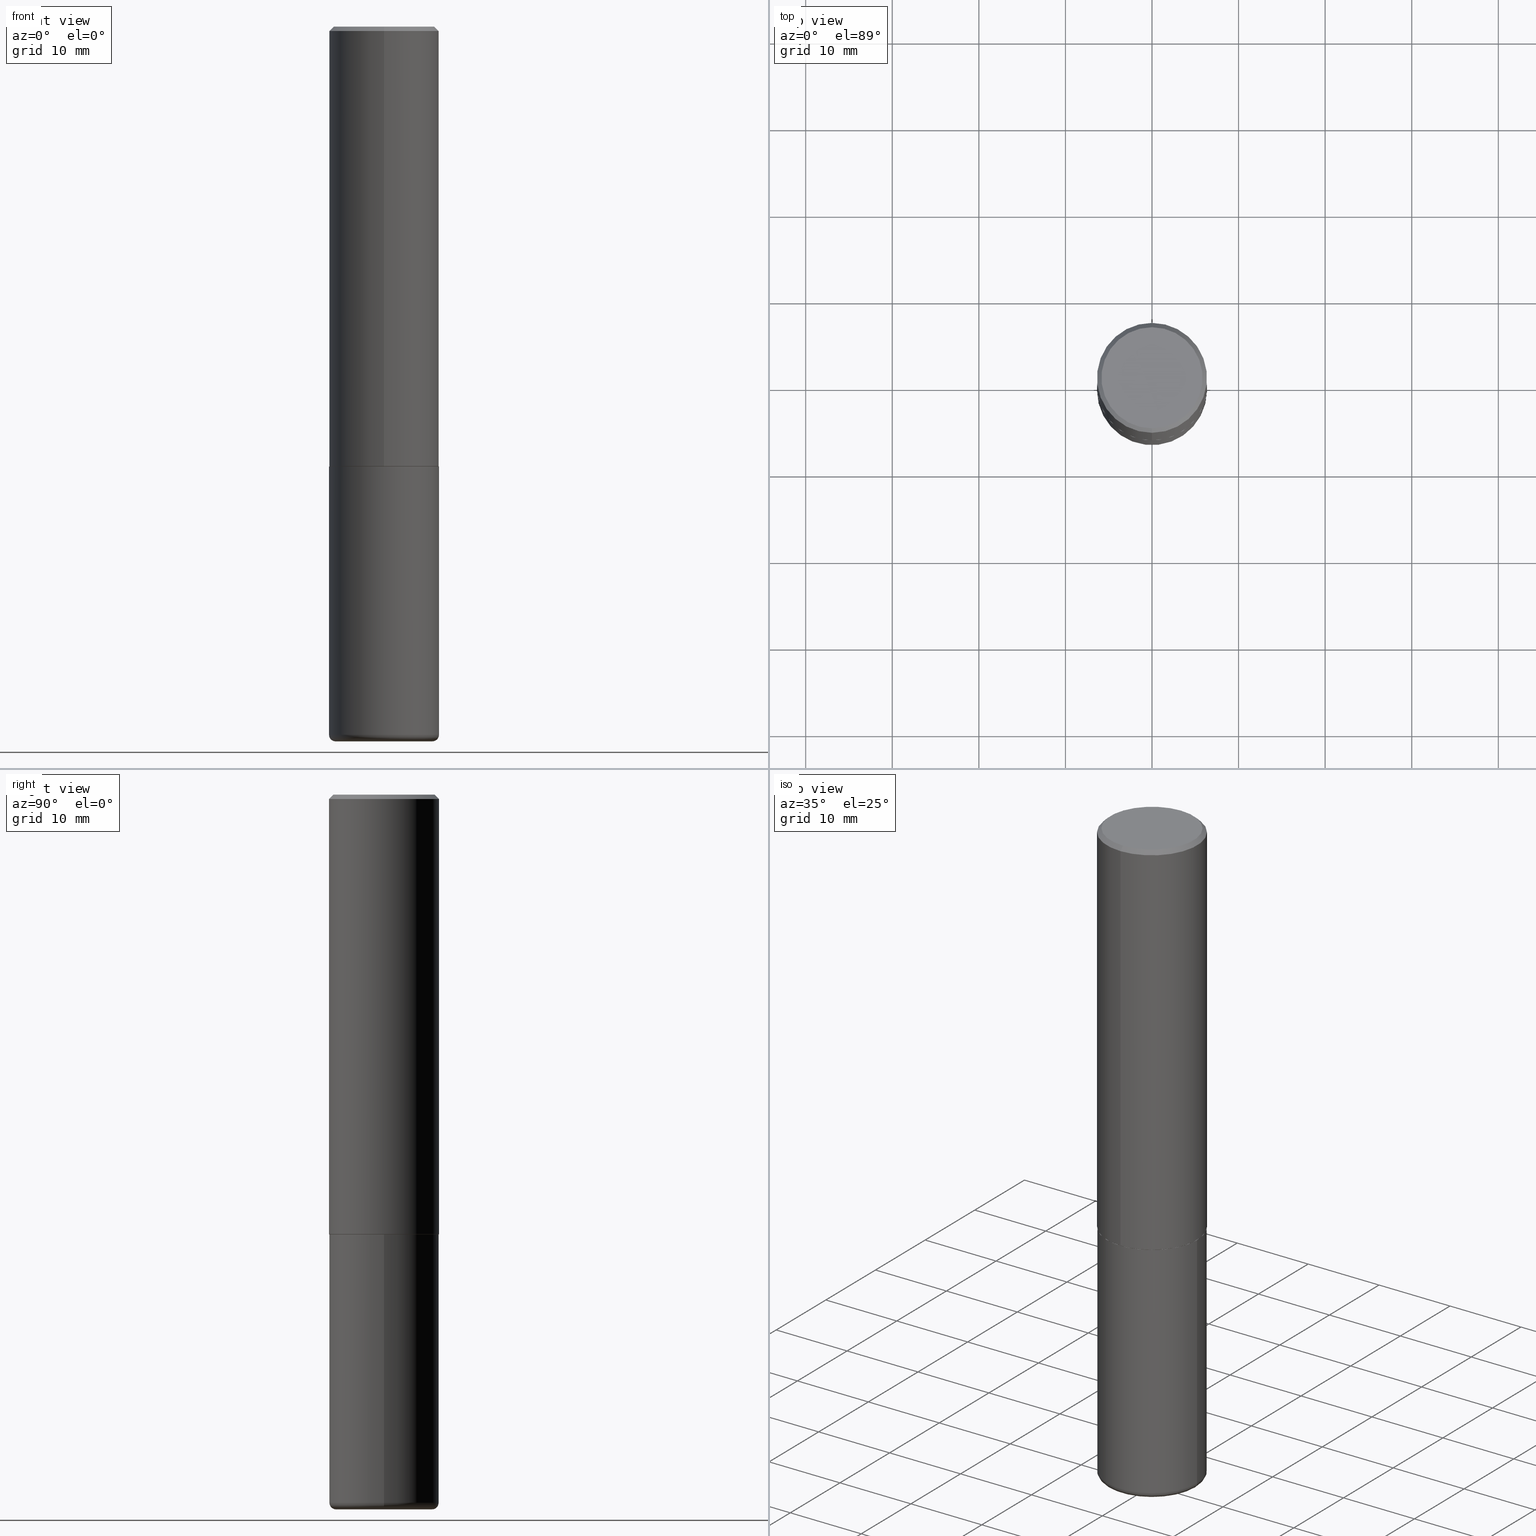
[diagram: canonical four-view strip — front | top / right | iso, engineering-drawing reading convention]
A machine part, canonical four-view strip (front | top / right | iso — engineering-drawing reading convention). The complete STEP part file that produces these views, byte-faithful:
ISO-10303-21;
HEADER;
FILE_DESCRIPTION (( 'STEP AP203' ),
    '1' );
FILE_NAME ('37192.STEP',
    '2024-03-01T21:39:27',
    ( '' ),
    ( '' ),
    'SwSTEP 2.0',
    'SolidWorks 2023',
    '' );
FILE_SCHEMA (( 'CONFIG_CONTROL_DESIGN' ));
ENDSEC;

DATA;
#1 = EDGE_LOOP ( 'NONE', ( #74, #173, #35, #307 ) ) ;
#2 = DIRECTION ( 'NONE',  ( 6.982962677686265922E-15, 1.000000000000000000, -3.500180241882337261E-15 ) ) ;
#3 = ORIENTED_EDGE ( 'NONE', *, *, #322, .F. ) ;
#4 = VERTEX_POINT ( 'NONE', #361 ) ;
#5 = VECTOR ( 'NONE', #354, 39.37007874015748143 ) ;
#6 = ORIENTED_EDGE ( 'NONE', *, *, #44, .F. ) ;
#7 = EDGE_CURVE ( 'NONE', #239, #100, #306, .T. ) ;
#8 = CARTESIAN_POINT ( 'NONE',  ( 4.889829077511369061E-31, -6.984550162698166284E-17, -0.02000000000000005593 ) ) ;
#9 = DIRECTION ( 'NONE',  ( -6.982962677686265133E-15, -1.000000000000000000, 3.291383124896702687E-15 ) ) ;
#10 = AXIS2_PLACEMENT_3D ( 'NONE', #364, #241, #367 ) ;
#11 = AXIS2_PLACEMENT_3D ( 'NONE', #292, #58, #266 ) ;
#12 = PLANE ( 'NONE',  #244 ) ;
#13 = ORIENTED_EDGE ( 'NONE', *, *, #102, .F. ) ;
#14 = DIRECTION ( 'NONE',  ( -6.982962677686265922E-15, -1.000000000000000000, 3.500180241882337261E-15 ) ) ;
#15 = VERTEX_POINT ( 'NONE', #246 ) ;
#16 = PRODUCT_DEFINITION_FORMATION_WITH_SPECIFIED_SOURCE ( 'ANY', '', #46, .NOT_KNOWN. ) ;
#17 = ORIENTED_EDGE ( 'NONE', *, *, #373, .F. ) ;
#18 = AXIS2_PLACEMENT_3D ( 'NONE', #411, #190, #347 ) ;
#19 = CARTESIAN_POINT ( 'NONE',  ( -1.738757706743831162E-15, -0.2490000000000069935, -1.999999999999999112 ) ) ;
#20 = ORIENTED_EDGE ( 'NONE', *, *, #399, .F. ) ;
#21 = DIRECTION ( 'NONE',  ( 1.000000000000000000, -6.982962677686266711E-15, 4.876176775795935793E-29 ) ) ;
#22 = CARTESIAN_POINT ( 'NONE',  ( 7.874409555916140425E-29, -1.124256991107492948E-14, -3.220000000000000195 ) ) ;
#23 = AXIS2_PLACEMENT_3D ( 'NONE', #330, #120, #147 ) ;
#24 = CARTESIAN_POINT ( 'NONE',  ( 1.772804125721499264E-15, 0.2489999999999930047, -2.000000000000000888 ) ) ;
#25 = APPROVAL_DATE_TIME ( #334, #176 ) ;
#26 = AXIS2_PLACEMENT_3D ( 'NONE', #47, #54, #90 ) ;
#27 = DIRECTION ( 'NONE',  ( 5.024295867788490741E-15, 0.7071067811866103003, 0.7071067811864847341 ) ) ;
#28 = EDGE_CURVE ( 'NONE', #100, #87, #219, .T. ) ;
#29 = ORIENTED_EDGE ( 'NONE', *, *, #327, .T. ) ;
#30 = DIRECTION ( 'NONE',  ( -6.982962677686266711E-15, -1.000000000000000000, 3.492275081349073750E-15 ) ) ;
#31 = CONICAL_SURFACE ( 'NONE', #122, 0.2489999999999999991, 0.7853981633975336552 ) ;
#32 =( CONVERSION_BASED_UNIT ( 'INCH', #309 ) LENGTH_UNIT ( ) NAMED_UNIT ( #385 ) );
#33 = ORIENTED_EDGE ( 'NONE', *, *, #102, .T. ) ;
#34 = ADVANCED_FACE ( 'NONE', ( #124 ), #178, .T. ) ;
#35 = ORIENTED_EDGE ( 'NONE', *, *, #399, .T. ) ;
#36 = AXIS2_PLACEMENT_3D ( 'NONE', #302, #134, #170 ) ;
#37 = DIRECTION ( 'NONE',  ( 2.444914538755677752E-29, -3.492275081349073750E-15, -1.000000000000000000 ) ) ;
#38 = EDGE_CURVE ( 'NONE', #199, #267, #94, .T. ) ;
#39 = CARTESIAN_POINT ( 'NONE',  ( 4.890937612370273194E-29, -6.982962677686291165E-15, -2.000000000000000000 ) ) ;
#40 = ORIENTED_EDGE ( 'NONE', *, *, #211, .T. ) ;
#41 = EDGE_CURVE ( 'NONE', #4, #387, #343, .T. ) ;
#42 = VECTOR ( 'NONE', #214, 39.37007874015748143 ) ;
#43 = CC_DESIGN_SECURITY_CLASSIFICATION ( #324, ( #16 ) ) ;
#44 = EDGE_CURVE ( 'NONE', #87, #355, #48, .T. ) ;
#45 = VERTEX_POINT ( 'NONE', #395 ) ;
#46 = PRODUCT ( '37192', '37192', '', ( #168 ) ) ;
#47 = CARTESIAN_POINT ( 'NONE',  ( 4.889829077511355503E-29, -6.984550162698146711E-15, -2.000000000000000000 ) ) ;
#48 = LINE ( 'NONE', #179, #42 ) ;
#49 = CARTESIAN_POINT ( 'NONE',  ( 0.000000000000000000, 0.000000000000000000, 0.000000000000000000 ) ) ;
#50 = CONICAL_SURFACE ( 'NONE', #260, 0.2500000000000000000, 0.7853981633974468357 ) ;
#51 = CARTESIAN_POINT ( 'NONE',  ( -2.404777551521915738E-45, 3.434944079330397096E-31, 9.835834804867292393E-17 ) ) ;
#52 = PERSON_AND_ORGANIZATION ( #375, #248 ) ;
#53 = FACE_OUTER_BOUND ( 'NONE', #182, .T. ) ;
#54 = DIRECTION ( 'NONE',  ( -2.444914538755677752E-29, 3.492275081349073750E-15, 1.000000000000000000 ) ) ;
#55 = CARTESIAN_POINT ( 'NONE',  ( 0.000000000000000000, 0.000000000000000000, 0.000000000000000000 ) ) ;
#56 = ADVANCED_FACE ( 'NONE', ( #320 ), #12, .F. ) ;
#57 = PERSON_AND_ORGANIZATION ( #375, #248 ) ;
#58 = DIRECTION ( 'NONE',  ( -2.445468806185136597E-29, 3.491481338843145583E-15, 1.000000000000000000 ) ) ;
#59 = CIRCLE ( 'NONE', #11, 0.2200000000000000011 ) ;
#60 = EDGE_CURVE ( 'NONE', #280, #15, #220, .T. ) ;
#61 = CARTESIAN_POINT ( 'NONE',  ( 1.776356839400276103E-15, 0.2499999999999933109, -1.999000000000000776 ) ) ;
#62 = PLANE ( 'NONE',  #36 ) ;
#63 = LOCAL_TIME ( 16, 39, 27.00000000000000000, #163 ) ;
#64 = EDGE_LOOP ( 'NONE', ( #357, #141, #13, #184 ) ) ;
#65 = ORIENTED_EDGE ( 'NONE', *, *, #69, .T. ) ;
#66 = CYLINDRICAL_SURFACE ( 'NONE', #195, 0.2500000000000001110 ) ;
#67 = ORIENTED_EDGE ( 'NONE', *, *, #150, .F. ) ;
#68 = AXIS2_PLACEMENT_3D ( 'NONE', #217, #79, #274 ) ;
#69 = EDGE_CURVE ( 'NONE', #114, #199, #325, .T. ) ;
#70 = DIRECTION ( 'NONE',  ( -2.444914538755677752E-29, 3.492275081349073750E-15, 1.000000000000000000 ) ) ;
#71 = CARTESIAN_POINT ( 'NONE',  ( 4.889829077511355503E-29, -6.984550162698146711E-15, -2.000000000000000000 ) ) ;
#72 = VECTOR ( 'NONE', #403, 39.37007874015748143 ) ;
#73 = EDGE_LOOP ( 'NONE', ( #125, #370, #97, #142 ) ) ;
#74 = ORIENTED_EDGE ( 'NONE', *, *, #7, .F. ) ;
#75 = DIRECTION ( 'NONE',  ( -2.445468806185136597E-29, 3.491481338843145583E-15, 1.000000000000000000 ) ) ;
#76 = ORIENTED_EDGE ( 'NONE', *, *, #242, .T. ) ;
#77 = APPROVAL_ROLE ( '' ) ;
#78 = CC_DESIGN_PERSON_AND_ORGANIZATION_ASSIGNMENT ( #261, #300, ( #16 ) ) ;
#79 = DIRECTION ( 'NONE',  ( -2.445468806185136597E-29, 3.491481338843145583E-15, 1.000000000000000000 ) ) ;
#80 = APPROVAL_DATE_TIME ( #262, #209 ) ;
#81 = CARTESIAN_POINT ( 'NONE',  ( 0.000000000000000000, 0.000000000000000000, 0.000000000000000000 ) ) ;
#82 = FACE_OUTER_BOUND ( 'NONE', #181, .T. ) ;
#83 = CARTESIAN_POINT ( 'NONE',  ( -0.2200000000000000011, -9.625166702121341610E-15, -3.249999999999999556 ) ) ;
#84 = FACE_OUTER_BOUND ( 'NONE', #271, .T. ) ;
#85 = AXIS2_PLACEMENT_3D ( 'NONE', #305, #270, #265 ) ;
#86 = AXIS2_PLACEMENT_3D ( 'NONE', #49, #407, #104 ) ;
#87 = VERTEX_POINT ( 'NONE', #250 ) ;
#88 = CARTESIAN_POINT ( 'NONE',  ( 1.745740669421566875E-15, 0.2499999999999999167, -0.02000000000000093023 ) ) ;
#89 = DESIGN_CONTEXT ( 'detailed design', #245, 'design' ) ;
#90 = DIRECTION ( 'NONE',  ( -6.982962677686265133E-15, -1.000000000000000000, 3.291383124896702687E-15 ) ) ;
#91 = DIRECTION ( 'NONE',  ( -2.445468806185136597E-29, 3.491481338843145583E-15, 1.000000000000000000 ) ) ;
#92 = EDGE_LOOP ( 'NONE', ( #188, #384, #159, #288 ) ) ;
#93 = CC_DESIGN_PERSON_AND_ORGANIZATION_ASSIGNMENT ( #376, #112, ( #324 ) ) ;
#94 = LINE ( 'NONE', #251, #72 ) ;
#95 = CIRCLE ( 'NONE', #372, 0.2200000000000000011 ) ;
#96 = CC_DESIGN_APPROVAL ( #340, ( #16 ) ) ;
#97 = ORIENTED_EDGE ( 'NONE', *, *, #44, .T. ) ;
#98 = CIRCLE ( 'NONE', #291, 0.2500000000000000000 ) ;
#99 = DIRECTION ( 'NONE',  ( -6.982962677686265922E-15, -1.000000000000000000, 3.492275081349073750E-15 ) ) ;
#100 = VERTEX_POINT ( 'NONE', #218 ) ;
#101 = DIRECTION ( 'NONE',  ( -2.444914538755677752E-29, 3.492275081349073750E-15, 1.000000000000000000 ) ) ;
#102 = EDGE_CURVE ( 'NONE', #267, #146, #151, .T. ) ;
#103 = ADVANCED_BREP_SHAPE_REPRESENTATION ( '37192', ( #312, #290, #86 ), #153 ) ;
#104 = DIRECTION ( 'NONE',  ( 1.000000000000000000, 0.000000000000000000, 0.000000000000000000 ) ) ;
#105 = DIRECTION ( 'NONE',  ( 1.000000000000000000, -6.982962677686266711E-15, 0.000000000000000000 ) ) ;
#106 = CIRCLE ( 'NONE', #382, 0.2500000000000002220 ) ;
#107 = CYLINDRICAL_SURFACE ( 'NONE', #284, 0.2500000000000000000 ) ;
#108 = CC_DESIGN_PERSON_AND_ORGANIZATION_ASSIGNMENT ( #52, #189, ( #249 ) ) ;
#109 = DIRECTION ( 'NONE',  ( 1.000000000000000000, -6.982962677686266711E-15, 4.876176775795935793E-29 ) ) ;
#110 = LINE ( 'NONE', #88, #316 ) ;
#111 = DIRECTION ( 'NONE',  ( -2.444914538755677752E-29, 3.492275081349073750E-15, 1.000000000000000000 ) ) ;
#112 = PERSON_AND_ORGANIZATION_ROLE ( 'classification_officer' ) ;
#113 = CARTESIAN_POINT ( 'NONE',  ( 0.2500000000000000000, -8.728703347107857054E-15, -2.000000000000000000 ) ) ;
#114 = VERTEX_POINT ( 'NONE', #24 ) ;
#115 = EDGE_CURVE ( 'NONE', #239, #45, #59, .T. ) ;
#116 = ORIENTED_EDGE ( 'NONE', *, *, #373, .T. ) ;
#117 = FACE_OUTER_BOUND ( 'NONE', #230, .T. ) ;
#118 = ORIENTED_EDGE ( 'NONE', *, *, #121, .T. ) ;
#119 = CARTESIAN_POINT ( 'NONE',  ( 4.889829077511369061E-31, -6.984550162698166284E-17, -0.02000000000000005593 ) ) ;
#120 = DIRECTION ( 'NONE',  ( -2.445468806185136597E-29, 3.491481338843145583E-15, 1.000000000000000000 ) ) ;
#121 = EDGE_CURVE ( 'NONE', #387, #4, #207, .T. ) ;
#122 = AXIS2_PLACEMENT_3D ( 'NONE', #71, #282, #9 ) ;
#123 = CARTESIAN_POINT ( 'NONE',  ( 4.889829077511355503E-29, -6.984550162698146711E-15, -2.000000000000000000 ) ) ;
#124 = FACE_OUTER_BOUND ( 'NONE', #401, .T. ) ;
#125 = ORIENTED_EDGE ( 'NONE', *, *, #293, .F. ) ;
#126 = DIRECTION ( 'NONE',  ( -6.982962677686265922E-15, -1.000000000000000000, 3.492275081349073750E-15 ) ) ;
#127 = CC_DESIGN_PERSON_AND_ORGANIZATION_ASSIGNMENT ( #338, #268, ( #46 ) ) ;
#128 = CARTESIAN_POINT ( 'NONE',  ( 1.358398051899500366E-28, -3.275945279050349102E-15, -3.249999999999999556 ) ) ;
#129 = CARTESIAN_POINT ( 'NONE',  ( 0.000000000000000000, 0.000000000000000000, 0.000000000000000000 ) ) ;
#130 = DATE_AND_TIME ( #297, #63 ) ;
#131 = VECTOR ( 'NONE', #27, 39.37007874015748143 ) ;
#132 = FACE_OUTER_BOUND ( 'NONE', #317, .T. ) ;
#133 = SECURITY_CLASSIFICATION_LEVEL ( 'unclassified' ) ;
#134 = DIRECTION ( 'NONE',  ( -2.444914538755677191E-29, 3.492275081349073750E-15, 1.000000000000000000 ) ) ;
#135 = FACE_OUTER_BOUND ( 'NONE', #1, .T. ) ;
#136 = ADVANCED_FACE ( 'NONE', ( #84 ), #227, .F. ) ;
#137 = PERSON_AND_ORGANIZATION ( #375, #248 ) ;
#138 = CARTESIAN_POINT ( 'NONE',  ( 0.000000000000000000, 0.000000000000000000, 0.000000000000000000 ) ) ;
#139 = ORIENTED_EDGE ( 'NONE', *, *, #311, .F. ) ;
#140 = CC_DESIGN_PERSON_AND_ORGANIZATION_ASSIGNMENT ( #412, #197, ( #16 ) ) ;
#141 = ORIENTED_EDGE ( 'NONE', *, *, #273, .T. ) ;
#142 = ORIENTED_EDGE ( 'NONE', *, *, #211, .F. ) ;
#143 = ORIENTED_EDGE ( 'NONE', *, *, #60, .F. ) ;
#144 = ORIENTED_EDGE ( 'NONE', *, *, #150, .T. ) ;
#145 = CONICAL_SURFACE ( 'NONE', #402, 0.2500000000000000000, 0.7853981633974468357 ) ;
#146 = VERTEX_POINT ( 'NONE', #61 ) ;
#147 = DIRECTION ( 'NONE',  ( 1.000000000000000000, -6.982962677686263555E-15, 4.883557194083112340E-29 ) ) ;
#148 = LOCAL_TIME ( 16, 39, 27.00000000000000000, #232 ) ;
#149 = DIRECTION ( 'NONE',  ( -6.982962677686265133E-15, -1.000000000000000000, 3.291383124896702687E-15 ) ) ;
#150 = EDGE_CURVE ( 'NONE', #146, #280, #408, .T. ) ;
#151 = CIRCLE ( 'NONE', #18, 0.2500000000000002220 ) ;
#152 = EDGE_LOOP ( 'NONE', ( #67, #204, #351, #143 ) ) ;
#153 =( GEOMETRIC_REPRESENTATION_CONTEXT ( 3 ) GLOBAL_UNCERTAINTY_ASSIGNED_CONTEXT ( ( #193 ) ) GLOBAL_UNIT_ASSIGNED_CONTEXT ( ( #32, #377, #352 ) ) REPRESENTATION_CONTEXT ( 'NONE', 'WORKASPACE' ) );
#154 = DIRECTION ( 'NONE',  ( -6.982962677686265133E-15, -1.000000000000000000, 3.291383124896702687E-15 ) ) ;
#155 = ORIENTED_EDGE ( 'NONE', *, *, #7, .T. ) ;
#156 = CC_DESIGN_APPROVAL ( #209, ( #249 ) ) ;
#157 = CC_DESIGN_DATE_AND_TIME_ASSIGNMENT ( #130, #413, ( #249 ) ) ;
#158 = PRODUCT_DEFINITION_SHAPE ( 'NONE', 'NONE',  #249 ) ;
#159 = ORIENTED_EDGE ( 'NONE', *, *, #410, .T. ) ;
#160 = APPLICATION_PROTOCOL_DEFINITION ( 'international standard', 'config_control_design', 1994, #245 ) ;
#161 = DIRECTION ( 'NONE',  ( -2.445468806185136597E-29, 3.491481338843145583E-15, 1.000000000000000000 ) ) ;
#162 = CARTESIAN_POINT ( 'NONE',  ( 4.887384162972599193E-29, -6.981057887616797828E-15, -1.998999999999999888 ) ) ;
#163 = COORDINATED_UNIVERSAL_TIME_OFFSET ( 5, 0, .BEHIND. ) ;
#164 = DIRECTION ( 'NONE',  ( 2.444914538755677191E-29, -3.492275081349073750E-15, -1.000000000000000000 ) ) ;
#165 = VECTOR ( 'NONE', #416, 39.37007874015748143 ) ;
#166 = DIRECTION ( 'NONE',  ( -2.445468806185136597E-29, 3.491481338843145583E-15, 1.000000000000000000 ) ) ;
#167 = DIRECTION ( 'NONE',  ( -6.982962677686266711E-15, -1.000000000000000000, 3.492275081349073750E-15 ) ) ;
#168 = MECHANICAL_CONTEXT ( 'NONE', #289, 'mechanical' ) ;
#169 = LINE ( 'NONE', #303, #165 ) ;
#170 = DIRECTION ( 'NONE',  ( -6.982962677686265922E-15, -1.000000000000000000, 3.492275081349073750E-15 ) ) ;
#171 = ORIENTED_EDGE ( 'NONE', *, *, #38, .T. ) ;
#172 = CLOSED_SHELL ( 'NONE', ( #226, #34, #56, #206, #279, #236 ) ) ;
#173 = ORIENTED_EDGE ( 'NONE', *, *, #115, .T. ) ;
#174 = CARTESIAN_POINT ( 'NONE',  ( 4.889829077511369061E-31, -6.984550162698166284E-17, -0.02000000000000005593 ) ) ;
#175 = AXIS2_PLACEMENT_3D ( 'NONE', #119, #398, #222 ) ;
#176 = APPROVAL ( #275, 'UNSPECIFIED' ) ;
#177 = CARTESIAN_POINT ( 'NONE',  ( -2.404777551521915738E-45, 3.434944079330397096E-31, 9.835834804867292393E-17 ) ) ;
#178 = TOROIDAL_SURFACE ( 'NONE', #23, 0.2200000000000000011, 0.02999999999999967970 ) ;
#179 = CARTESIAN_POINT ( 'NONE',  ( 0.2500000000000000000, -1.745740669421566678E-15, 1.219044193948983948E-29 ) ) ;
#180 = CONICAL_SURFACE ( 'NONE', #26, 0.2489999999999999991, 0.7853981633975336552 ) ;
#181 = EDGE_LOOP ( 'NONE', ( #3, #331 ) ) ;
#182 = EDGE_LOOP ( 'NONE', ( #328, #201, #256, #254 ) ) ;
#183 = DIRECTION ( 'NONE',  ( -6.982962677686266711E-15, -1.000000000000000000, 3.278217592397113101E-15 ) ) ;
#184 = ORIENTED_EDGE ( 'NONE', *, *, #38, .F. ) ;
#185 = COORDINATED_UNIVERSAL_TIME_OFFSET ( 5, 0, .BEHIND. ) ;
#186 = EDGE_CURVE ( 'NONE', #267, #15, #169, .T. ) ;
#187 = CARTESIAN_POINT ( 'NONE',  ( 1.769251412042698169E-15, 0.2489999999999930047, -2.000000000000000888 ) ) ;
#188 = ORIENTED_EDGE ( 'NONE', *, *, #390, .F. ) ;
#189 = PERSON_AND_ORGANIZATION_ROLE ( 'creator' ) ;
#190 = DIRECTION ( 'NONE',  ( -2.444914538755677752E-29, 3.492275081349073750E-15, 1.000000000000000000 ) ) ;
#191 = PERSON_AND_ORGANIZATION ( #375, #248 ) ;
#192 = DIRECTION ( 'NONE',  ( -2.444914538755678032E-29, 3.492275081349073750E-15, 1.000000000000000000 ) ) ;
#193 = UNCERTAINTY_MEASURE_WITH_UNIT (LENGTH_MEASURE( 1.000000000000000082E-05 ), #32, 'distance_accuracy_value', 'NONE');
#194 = DATE_AND_TIME ( #388, #329 ) ;
#195 = AXIS2_PLACEMENT_3D ( 'NONE', #138, #415, #30 ) ;
#196 = LOCAL_TIME ( 16, 39, 27.00000000000000000, #252 ) ;
#197 = PERSON_AND_ORGANIZATION_ROLE ( 'creator' ) ;
#198 = CARTESIAN_POINT ( 'NONE',  ( 7.947773620101692818E-29, -1.134731435124022127E-14, -3.249999999999999556 ) ) ;
#199 = VERTEX_POINT ( 'NONE', #19 ) ;
#200 = DIRECTION ( 'NONE',  ( 4.937700262164540154E-15, 0.7071067811865440200, -0.7071067811865510144 ) ) ;
#201 = ORIENTED_EDGE ( 'NONE', *, *, #390, .T. ) ;
#202 = AXIS2_PLACEMENT_3D ( 'NONE', #22, #91, #240 ) ;
#203 = AXIS2_PLACEMENT_3D ( 'NONE', #128, #259, #380 ) ;
#204 = ORIENTED_EDGE ( 'NONE', *, *, #233, .T. ) ;
#205 = ORIENTED_EDGE ( 'NONE', *, *, #186, .F. ) ;
#206 = ADVANCED_FACE ( 'NONE', ( #374 ), #107, .T. ) ;
#207 = CIRCLE ( 'NONE', #365, 0.2299999999999998990 ) ;
#208 = ADVANCED_FACE ( 'NONE', ( #132 ), #255, .T. ) ;
#209 = APPROVAL ( #216, 'UNSPECIFIED' ) ;
#210 = DIRECTION ( 'NONE',  ( -2.444914538755677752E-29, 3.492275081349073750E-15, 1.000000000000000000 ) ) ;
#211 = EDGE_CURVE ( 'NONE', #363, #355, #98, .T. ) ;
#212 = CARTESIAN_POINT ( 'NONE',  ( 7.874409555916140425E-29, -1.124256991107492948E-14, -3.220000000000000195 ) ) ;
#213 = VECTOR ( 'NONE', #192, 39.37007874015748143 ) ;
#214 = DIRECTION ( 'NONE',  ( -2.445468806185136877E-29, 3.491481338843145188E-15, 1.000000000000000000 ) ) ;
#215 = DIRECTION ( 'NONE',  ( 1.000000000000000000, -6.982962677686266711E-15, 0.000000000000000000 ) ) ;
#216 = APPROVAL_STATUS ( 'not_yet_approved' ) ;
#217 = CARTESIAN_POINT ( 'NONE',  ( 7.874409555916140425E-29, -1.124256991107492948E-14, -3.220000000000000195 ) ) ;
#218 = CARTESIAN_POINT ( 'NONE',  ( -0.2499999999999998335, -9.466213071674680591E-15, -3.220000000000000195 ) ) ;
#219 = CIRCLE ( 'NONE', #235, 0.2499999999999999722 ) ;
#220 = CIRCLE ( 'NONE', #396, 0.2500000000000000000 ) ;
#221 = DIRECTION ( 'NONE',  ( 6.982962677686265922E-15, 1.000000000000000000, -3.492275081349073750E-15 ) ) ;
#222 = DIRECTION ( 'NONE',  ( -6.982962677686265922E-15, -1.000000000000000000, 3.500180241882337261E-15 ) ) ;
#223 = APPROVAL_PERSON_ORGANIZATION ( #57, #209, #77 ) ;
#224 = LINE ( 'NONE', #389, #5 ) ;
#225 = FACE_OUTER_BOUND ( 'NONE', #247, .T. ) ;
#226 = ADVANCED_FACE ( 'NONE', ( #369 ), #263, .T. ) ;
#227 = PLANE ( 'NONE',  #353 ) ;
#228 = CIRCLE ( 'NONE', #175, 0.2500000000000000000 ) ;
#229 = FACE_OUTER_BOUND ( 'NONE', #92, .T. ) ;
#230 = EDGE_LOOP ( 'NONE', ( #276, #65, #171, #238 ) ) ;
#231 = CARTESIAN_POINT ( 'NONE',  ( 4.889829077511369061E-31, -6.984550162698166284E-17, -0.02000000000000005593 ) ) ;
#232 = COORDINATED_UNIVERSAL_TIME_OFFSET ( 5, 0, .BEHIND. ) ;
#233 = EDGE_CURVE ( 'NONE', #146, #267, #106, .T. ) ;
#234 = CARTESIAN_POINT ( 'NONE',  ( -0.2500000000000000000, -7.336409454980359463E-15, -2.000000000000000000 ) ) ;
#235 = AXIS2_PLACEMENT_3D ( 'NONE', #212, #321, #283 ) ;
#236 = ADVANCED_FACE ( 'NONE', ( #225 ), #333, .T. ) ;
#237 = CIRCLE ( 'NONE', #299, 0.2489999999999999991 ) ;
#238 = ORIENTED_EDGE ( 'NONE', *, *, #233, .F. ) ;
#239 = VERTEX_POINT ( 'NONE', #83 ) ;
#240 = DIRECTION ( 'NONE',  ( 1.000000000000000000, -6.982962677686263555E-15, 4.883557194083112340E-29 ) ) ;
#241 = DIRECTION ( 'NONE',  ( 7.105427357601001859E-15, 1.000000000000000000, -3.491481338843145583E-15 ) ) ;
#242 = EDGE_CURVE ( 'NONE', #355, #363, #344, .T. ) ;
#243 = DIRECTION ( 'NONE',  ( -1.000000000000000000, 6.982962677686265922E-15, -4.876176775795935793E-29 ) ) ;
#244 = AXIS2_PLACEMENT_3D ( 'NONE', #39, #281, #243 ) ;
#245 = APPLICATION_CONTEXT ( 'configuration controlled 3d designs of mechanical parts and assemblies' ) ;
#246 = CARTESIAN_POINT ( 'NONE',  ( -1.715124499442882299E-15, -0.2500000000000000555, -0.01999999999999918163 ) ) ;
#247 = EDGE_LOOP ( 'NONE', ( #17, #358 ) ) ;
#248 = ORGANIZATION ( 'UNSPECIFIED', 'UNSPECIFIED', '' ) ;
#249 = PRODUCT_DEFINITION ( 'UNKNOWN', '', #16, #89 ) ;
#250 = CARTESIAN_POINT ( 'NONE',  ( 0.2499999999999998335, -1.298831058049649773E-14, -3.220000000000000195 ) ) ;
#251 = CARTESIAN_POINT ( 'NONE',  ( -1.738757706743831162E-15, -0.2490000000000069935, -1.999999999999999112 ) ) ;
#252 = COORDINATED_UNIVERSAL_TIME_OFFSET ( 5, 0, .BEHIND. ) ;
#253 = CIRCLE ( 'NONE', #85, 0.02999999999999967970 ) ;
#254 = ORIENTED_EDGE ( 'NONE', *, *, #410, .F. ) ;
#255 = CYLINDRICAL_SURFACE ( 'NONE', #335, 0.2500000000000001110 ) ;
#256 = ORIENTED_EDGE ( 'NONE', *, *, #311, .T. ) ;
#257 = DIRECTION ( 'NONE',  ( -2.445468806185136597E-29, 3.491481338843145583E-15, 1.000000000000000000 ) ) ;
#258 = DIRECTION ( 'NONE',  ( -2.445468806185136877E-29, 3.491481338843145188E-15, 1.000000000000000000 ) ) ;
#259 = DIRECTION ( 'NONE',  ( 2.438088387897960049E-29, -3.491481338843145188E-15, -1.000000000000000000 ) ) ;
#260 = AXIS2_PLACEMENT_3D ( 'NONE', #174, #37, #404 ) ;
#261 = PERSON_AND_ORGANIZATION ( #375, #248 ) ;
#262 = DATE_AND_TIME ( #336, #393 ) ;
#263 = CYLINDRICAL_SURFACE ( 'NONE', #315, 0.2500000000000000000 ) ;
#264 = SHAPE_DEFINITION_REPRESENTATION ( #158, #103 ) ;
#265 = DIRECTION ( 'NONE',  ( 1.000000000000000000, -6.982962677686277755E-15, 0.000000000000000000 ) ) ;
#266 = DIRECTION ( 'NONE',  ( 1.000000000000000000, -6.982962677686270655E-15, 0.000000000000000000 ) ) ;
#267 = VERTEX_POINT ( 'NONE', #371 ) ;
#268 = PERSON_AND_ORGANIZATION_ROLE ( 'design_owner' ) ;
#269 = CIRCLE ( 'NONE', #68, 0.2499999999999999722 ) ;
#270 = DIRECTION ( 'NONE',  ( -6.982962677686266711E-15, -1.000000000000000000, 3.491481338843145583E-15 ) ) ;
#271 = EDGE_LOOP ( 'NONE', ( #118, #286 ) ) ;
#272 = DATE_AND_TIME ( #304, #148 ) ;
#273 = EDGE_CURVE ( 'NONE', #114, #146, #337, .T. ) ;
#274 = DIRECTION ( 'NONE',  ( 1.000000000000000000, -6.982962677686263555E-15, 0.000000000000000000 ) ) ;
#275 = APPROVAL_STATUS ( 'not_yet_approved' ) ;
#276 = ORIENTED_EDGE ( 'NONE', *, *, #273, .F. ) ;
#277 = AXIS2_PLACEMENT_3D ( 'NONE', #123, #287, #154 ) ;
#278 = ORIENTED_EDGE ( 'NONE', *, *, #293, .T. ) ;
#279 = ADVANCED_FACE ( 'NONE', ( #135 ), #308, .T. ) ;
#280 = VERTEX_POINT ( 'NONE', #294 ) ;
#281 = DIRECTION ( 'NONE',  ( 2.438088387897960049E-29, -3.491481338843145188E-15, -1.000000000000000000 ) ) ;
#282 = DIRECTION ( 'NONE',  ( -2.444914538755677752E-29, 3.492275081349073750E-15, 1.000000000000000000 ) ) ;
#283 = DIRECTION ( 'NONE',  ( 1.000000000000000000, -6.982962677686263555E-15, 0.000000000000000000 ) ) ;
#284 = AXIS2_PLACEMENT_3D ( 'NONE', #81, #379, #21 ) ;
#285 = ADVANCED_FACE ( 'NONE', ( #53 ), #50, .T. ) ;
#286 = ORIENTED_EDGE ( 'NONE', *, *, #41, .T. ) ;
#287 = DIRECTION ( 'NONE',  ( -2.444914538755677752E-29, 3.492275081349073750E-15, 1.000000000000000000 ) ) ;
#288 = ORIENTED_EDGE ( 'NONE', *, *, #60, .T. ) ;
#289 = APPLICATION_CONTEXT ( 'configuration controlled 3d designs of mechanical parts and assemblies' ) ;
#290 = MANIFOLD_SOLID_BREP ( 'Body-Move/Copy2[2]', #332 ) ;
#291 = AXIS2_PLACEMENT_3D ( 'NONE', #298, #161, #215 ) ;
#292 = CARTESIAN_POINT ( 'NONE',  ( 7.947773620101692818E-29, -1.134731435124022127E-14, -3.249999999999999556 ) ) ;
#293 = EDGE_CURVE ( 'NONE', #100, #363, #318, .T. ) ;
#294 = CARTESIAN_POINT ( 'NONE',  ( 1.745740669421566875E-15, 0.2499999999999999167, -0.02000000000000093023 ) ) ;
#295 = EDGE_LOOP ( 'NONE', ( #76, #40 ) ) ;
#296 = ADVANCED_FACE ( 'NONE', ( #117 ), #180, .T. ) ;
#297 = CALENDAR_DATE ( 2024, 1, 3 ) ;
#298 = CARTESIAN_POINT ( 'NONE',  ( 4.890937612370273194E-29, -6.982962677686291165E-15, -2.000000000000000000 ) ) ;
#299 = AXIS2_PLACEMENT_3D ( 'NONE', #323, #210, #149 ) ;
#300 = PERSON_AND_ORGANIZATION_ROLE ( 'design_supplier' ) ;
#301 = CC_DESIGN_DATE_AND_TIME_ASSIGNMENT ( #194, #348, ( #324 ) ) ;
#302 = CARTESIAN_POINT ( 'NONE',  ( 4.889829077511355503E-29, -6.984550162698146711E-15, -2.000000000000000000 ) ) ;
#303 = CARTESIAN_POINT ( 'NONE',  ( -1.745740669421567467E-15, -0.2500000000000001110, 8.730687703372688319E-16 ) ) ;
#304 = CALENDAR_DATE ( 2024, 1, 3 ) ;
#305 = CARTESIAN_POINT ( 'NONE',  ( 0.2200000000000000011, -1.277882170016590942E-14, -3.220000000000000195 ) ) ;
#306 = CIRCLE ( 'NONE', #10, 0.02999999999999967970 ) ;
#307 = ORIENTED_EDGE ( 'NONE', *, *, #28, .F. ) ;
#308 = TOROIDAL_SURFACE ( 'NONE', #202, 0.2200000000000000011, 0.02999999999999967970 ) ;
#309 = LENGTH_MEASURE_WITH_UNIT ( LENGTH_MEASURE( 0.02539999999999999897 ), #346 );
#310 = APPROVAL_PERSON_ORGANIZATION ( #137, #176, #359 ) ;
#311 = EDGE_CURVE ( 'NONE', #15, #280, #228, .T. ) ;
#312 = MANIFOLD_SOLID_BREP ( 'Body-Move/Copy2[1]', #172 ) ;
#313 = AXIS2_PLACEMENT_3D ( 'NONE', #177, #70, #99 ) ;
#314 = ADVANCED_FACE ( 'NONE', ( #362 ), #31, .T. ) ;
#315 = AXIS2_PLACEMENT_3D ( 'NONE', #129, #75, #109 ) ;
#316 = VECTOR ( 'NONE', #200, 39.37007874015748143 ) ;
#317 = EDGE_LOOP ( 'NONE', ( #33, #144, #139, #205 ) ) ;
#318 = LINE ( 'NONE', #368, #391 ) ;
#319 = CC_DESIGN_APPROVAL ( #176, ( #324 ) ) ;
#320 = FACE_OUTER_BOUND ( 'NONE', #295, .T. ) ;
#321 = DIRECTION ( 'NONE',  ( -2.445468806185136597E-29, 3.491481338843145583E-15, 1.000000000000000000 ) ) ;
#322 = EDGE_CURVE ( 'NONE', #199, #114, #237, .T. ) ;
#323 = CARTESIAN_POINT ( 'NONE',  ( 4.889829077511355503E-29, -6.984550162698146711E-15, -2.000000000000000000 ) ) ;
#324 = SECURITY_CLASSIFICATION ( '', '', #133 ) ;
#325 = CIRCLE ( 'NONE', #277, 0.2489999999999999991 ) ;
#326 = DIRECTION ( 'NONE',  ( -2.444914538755677752E-29, 3.492275081349073750E-15, 1.000000000000000000 ) ) ;
#327 = EDGE_CURVE ( 'NONE', #87, #100, #269, .T. ) ;
#328 = ORIENTED_EDGE ( 'NONE', *, *, #41, .F. ) ;
#329 = LOCAL_TIME ( 16, 39, 27.00000000000000000, #341 ) ;
#330 = CARTESIAN_POINT ( 'NONE',  ( 7.874409555916140425E-29, -1.124256991107492948E-14, -3.220000000000000195 ) ) ;
#331 = ORIENTED_EDGE ( 'NONE', *, *, #69, .F. ) ;
#332 = CLOSED_SHELL ( 'NONE', ( #314, #208, #285, #349, #381, #296, #397, #136 ) ) ;
#333 = PLANE ( 'NONE',  #203 ) ;
#334 = DATE_AND_TIME ( #417, #196 ) ;
#335 = AXIS2_PLACEMENT_3D ( 'NONE', #55, #101, #167 ) ;
#336 = CALENDAR_DATE ( 2024, 1, 3 ) ;
#337 = LINE ( 'NONE', #187, #131 ) ;
#338 = PERSON_AND_ORGANIZATION ( #375, #248 ) ;
#339 = CARTESIAN_POINT ( 'NONE',  ( 1.776356839400251254E-15, 0.2500000000000001110, -8.730687703372688319E-16 ) ) ;
#340 = APPROVAL ( #400, 'UNSPECIFIED' ) ;
#341 = COORDINATED_UNIVERSAL_TIME_OFFSET ( 5, 0, .BEHIND. ) ;
#342 = CARTESIAN_POINT ( 'NONE',  ( 4.890937612370273194E-29, -6.982962677686291165E-15, -2.000000000000000000 ) ) ;
#343 = CIRCLE ( 'NONE', #313, 0.2299999999999998990 ) ;
#344 = CIRCLE ( 'NONE', #360, 0.2500000000000000000 ) ;
#345 = APPLICATION_PROTOCOL_DEFINITION ( 'international standard', 'config_control_design', 1994, #289 ) ;
#346 =( LENGTH_UNIT ( ) NAMED_UNIT ( * ) SI_UNIT ( $, .METRE. ) );
#347 = DIRECTION ( 'NONE',  ( -6.982962677686266711E-15, -1.000000000000000000, 3.278217592397113101E-15 ) ) ;
#348 = DATE_TIME_ROLE ( 'classification_date' ) ;
#349 = ADVANCED_FACE ( 'NONE', ( #229 ), #145, .T. ) ;
#350 = DIRECTION ( 'NONE',  ( 1.000000000000000000, -6.982962677686270655E-15, 0.000000000000000000 ) ) ;
#351 = ORIENTED_EDGE ( 'NONE', *, *, #186, .T. ) ;
#352 =( NAMED_UNIT ( * ) SI_UNIT ( $, .STERADIAN. ) SOLID_ANGLE_UNIT ( ) );
#353 = AXIS2_PLACEMENT_3D ( 'NONE', #414, #164, #221 ) ;
#354 = DIRECTION ( 'NONE',  ( -4.851104656540956386E-15, -0.7071067811865489050, -0.7071067811865461294 ) ) ;
#355 = VERTEX_POINT ( 'NONE', #113 ) ;
#356 = EDGE_LOOP ( 'NONE', ( #29, #278, #394, #6 ) ) ;
#357 = ORIENTED_EDGE ( 'NONE', *, *, #322, .T. ) ;
#358 = ORIENTED_EDGE ( 'NONE', *, *, #115, .F. ) ;
#359 = APPROVAL_ROLE ( '' ) ;
#360 = AXIS2_PLACEMENT_3D ( 'NONE', #342, #257, #105 ) ;
#361 = CARTESIAN_POINT ( 'NONE',  ( -1.646519519465166770E-15, -0.2299999999999998990, 9.015816167589595013E-16 ) ) ;
#362 = FACE_OUTER_BOUND ( 'NONE', #64, .T. ) ;
#363 = VERTEX_POINT ( 'NONE', #234 ) ;
#364 = CARTESIAN_POINT ( 'NONE',  ( -0.2200000000000000011, -9.679375892402709259E-15, -3.220000000000000195 ) ) ;
#365 = AXIS2_PLACEMENT_3D ( 'NONE', #51, #405, #126 ) ;
#366 = APPROVAL_ROLE ( '' ) ;
#367 = DIRECTION ( 'NONE',  ( -1.000000000000000000, 7.105427357601001859E-15, 0.000000000000000000 ) ) ;
#368 = CARTESIAN_POINT ( 'NONE',  ( -0.2500000000000000000, 1.776356839400250465E-15, -1.229733772563726445E-29 ) ) ;
#369 = FACE_OUTER_BOUND ( 'NONE', #356, .T. ) ;
#370 = ORIENTED_EDGE ( 'NONE', *, *, #28, .T. ) ;
#371 = CARTESIAN_POINT ( 'NONE',  ( -1.745740669421519346E-15, -0.2500000000000072164, -1.998999999999999000 ) ) ;
#372 = AXIS2_PLACEMENT_3D ( 'NONE', #198, #166, #350 ) ;
#373 = EDGE_CURVE ( 'NONE', #45, #239, #95, .T. ) ;
#374 = FACE_OUTER_BOUND ( 'NONE', #73, .T. ) ;
#375 = PERSON ( 'UNSPECIFIED', 'UNSPECIFIED', 'UNSPECIFIED', ('UNSPECIFIED'), ('UNSPECIFIED'), ('UNSPECIFIED') ) ;
#376 = PERSON_AND_ORGANIZATION ( #375, #248 ) ;
#377 =( NAMED_UNIT ( * ) PLANE_ANGLE_UNIT ( ) SI_UNIT ( $, .RADIAN. ) );
#378 = FACE_OUTER_BOUND ( 'NONE', #152, .T. ) ;
#379 = DIRECTION ( 'NONE',  ( -2.445468806185136597E-29, 3.491481338843145583E-15, 1.000000000000000000 ) ) ;
#380 = DIRECTION ( 'NONE',  ( -1.000000000000000000, 6.982962677686265922E-15, -4.876176775795935793E-29 ) ) ;
#381 = ADVANCED_FACE ( 'NONE', ( #378 ), #66, .T. ) ;
#382 = AXIS2_PLACEMENT_3D ( 'NONE', #162, #111, #183 ) ;
#383 = APPROVAL_DATE_TIME ( #272, #340 ) ;
#384 = ORIENTED_EDGE ( 'NONE', *, *, #121, .F. ) ;
#385 = DIMENSIONAL_EXPONENTS ( 1.000000000000000000, 0.000000000000000000, 0.000000000000000000, 0.000000000000000000, 0.000000000000000000, 0.000000000000000000, 0.000000000000000000 ) ;
#386 = CARTESIAN_POINT ( 'NONE',  ( 1.675911042644703774E-15, 0.2299999999999998990, -7.048649206616136781E-16 ) ) ;
#387 = VERTEX_POINT ( 'NONE', #386 ) ;
#388 = CALENDAR_DATE ( 2024, 1, 3 ) ;
#389 = CARTESIAN_POINT ( 'NONE',  ( -1.715124499442882299E-15, -0.2500000000000000555, -0.01999999999999918163 ) ) ;
#390 = EDGE_CURVE ( 'NONE', #4, #15, #224, .T. ) ;
#391 = VECTOR ( 'NONE', #258, 39.37007874015748143 ) ;
#392 = PRODUCT_RELATED_PRODUCT_CATEGORY ( 'detail', '', ( #46 ) ) ;
#393 = LOCAL_TIME ( 16, 39, 27.00000000000000000, #185 ) ;
#394 = ORIENTED_EDGE ( 'NONE', *, *, #242, .F. ) ;
#395 = CARTESIAN_POINT ( 'NONE',  ( 0.2200000000000000011, -1.288356614033120121E-14, -3.249999999999999556 ) ) ;
#396 = AXIS2_PLACEMENT_3D ( 'NONE', #8, #326, #14 ) ;
#397 = ADVANCED_FACE ( 'NONE', ( #82 ), #62, .F. ) ;
#398 = DIRECTION ( 'NONE',  ( -2.444914538755677752E-29, 3.492275081349073750E-15, 1.000000000000000000 ) ) ;
#399 = EDGE_CURVE ( 'NONE', #45, #87, #253, .T. ) ;
#400 = APPROVAL_STATUS ( 'not_yet_approved' ) ;
#401 = EDGE_LOOP ( 'NONE', ( #116, #155, #406, #20 ) ) ;
#402 = AXIS2_PLACEMENT_3D ( 'NONE', #231, #418, #2 ) ;
#403 = DIRECTION ( 'NONE',  ( -4.937700262164969294E-15, -0.7071067811866054154, 0.7071067811864896191 ) ) ;
#404 = DIRECTION ( 'NONE',  ( 6.982962677686265922E-15, 1.000000000000000000, -3.500180241882337261E-15 ) ) ;
#405 = DIRECTION ( 'NONE',  ( -2.444914538755677752E-29, 3.492275081349073750E-15, 1.000000000000000000 ) ) ;
#406 = ORIENTED_EDGE ( 'NONE', *, *, #327, .F. ) ;
#407 = DIRECTION ( 'NONE',  ( 0.000000000000000000, 0.000000000000000000, 1.000000000000000000 ) ) ;
#408 = LINE ( 'NONE', #339, #213 ) ;
#409 = APPROVAL_PERSON_ORGANIZATION ( #191, #340, #366 ) ;
#410 = EDGE_CURVE ( 'NONE', #387, #280, #110, .T. ) ;
#411 = CARTESIAN_POINT ( 'NONE',  ( 4.887384162972599193E-29, -6.981057887616797828E-15, -1.998999999999999888 ) ) ;
#412 = PERSON_AND_ORGANIZATION ( #375, #248 ) ;
#413 = DATE_TIME_ROLE ( 'creation_date' ) ;
#414 = CARTESIAN_POINT ( 'NONE',  ( 1.606081415867840476E-15, 0.2299999999999998990, -7.540440946859502079E-16 ) ) ;
#415 = DIRECTION ( 'NONE',  ( -2.444914538755677752E-29, 3.492275081349073750E-15, 1.000000000000000000 ) ) ;
#416 = DIRECTION ( 'NONE',  ( -2.444914538755678032E-29, 3.492275081349073750E-15, 1.000000000000000000 ) ) ;
#417 = CALENDAR_DATE ( 2024, 1, 3 ) ;
#418 = DIRECTION ( 'NONE',  ( 2.444914538755677752E-29, -3.492275081349073750E-15, -1.000000000000000000 ) ) ;
ENDSEC;
END-ISO-10303-21;
